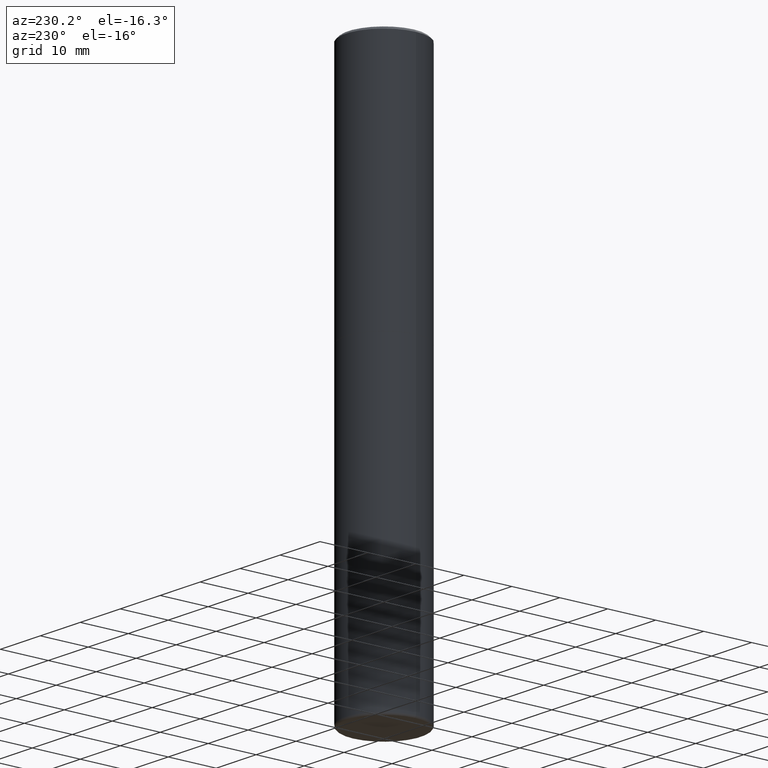
[diagram: clean part render]
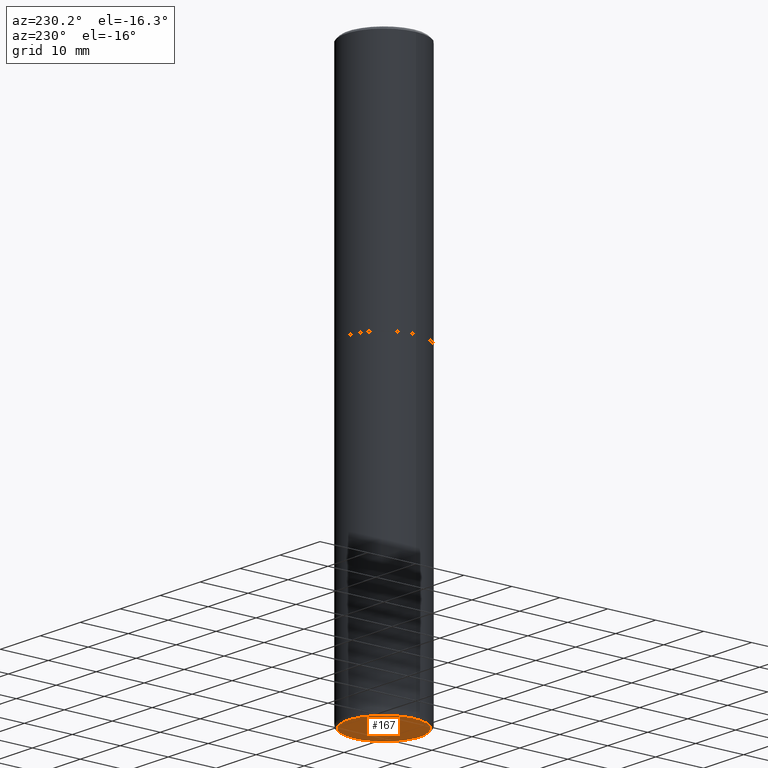
[diagram: same view with one face highlighted and labeled with its STEP entity id]
A machine part, auxiliary view. The second image highlights one B-rep face of the part: STEP entity #167.
In plain terms, the highlighted planar face has unit normal (0, -0, -1).
Its self-contained STEP definition (entity closure, byte-faithful):
#10 = CARTESIAN_POINT ( 'NONE',  ( 1.107210456688382074E-28, -1.580803090974622074E-14, -4.527599999999998737 ) ) ;
#14 = EDGE_CURVE ( 'NONE', #262, #311, #381, .T. ) ;
#34 = CARTESIAN_POINT ( 'NONE',  ( -0.2952500000000000124, -1.360577393175455947E-14, -4.527599999999998737 ) ) ;
#43 = EDGE_CURVE ( 'NONE', #311, #262, #332, .T. ) ;
#72 = DIRECTION ( 'NONE',  ( -1.000000000000000000, 6.982962677686265922E-15, -4.876176775795935793E-29 ) ) ;
#107 = AXIS2_PLACEMENT_3D ( 'NONE', #414, #115, #72 ) ;
#115 = DIRECTION ( 'NONE',  ( 2.438088387897960049E-29, -3.491481338843145188E-15, -1.000000000000000000 ) ) ;
#123 = AXIS2_PLACEMENT_3D ( 'NONE', #10, #131, #330 ) ;
#131 = DIRECTION ( 'NONE',  ( -2.445468806185136597E-29, 3.491481338843145583E-15, 1.000000000000000000 ) ) ;
#135 = CARTESIAN_POINT ( 'NONE',  ( 1.107210456688382074E-28, -1.580803090974622074E-14, -4.527599999999998737 ) ) ;
#167 = ADVANCED_FACE ( 'NONE', ( #178 ), #281, .T. ) ;
#175 = AXIS2_PLACEMENT_3D ( 'NONE', #135, #264, #335 ) ;
#178 = FACE_OUTER_BOUND ( 'NONE', #283, .T. ) ;
#180 = CARTESIAN_POINT ( 'NONE',  ( 0.2952500000000000124, -1.786975064033309297E-14, -4.527599999999998737 ) ) ;
#220 = ORIENTED_EDGE ( 'NONE', *, *, #43, .F. ) ;
#262 = VERTEX_POINT ( 'NONE', #180 ) ;
#264 = DIRECTION ( 'NONE',  ( -2.445468806185136597E-29, 3.491481338843145583E-15, 1.000000000000000000 ) ) ;
#281 = PLANE ( 'NONE',  #107 ) ;
#283 = EDGE_LOOP ( 'NONE', ( #403, #220 ) ) ;
#311 = VERTEX_POINT ( 'NONE', #34 ) ;
#330 = DIRECTION ( 'NONE',  ( 1.000000000000000000, -6.982962677686273021E-15, 0.000000000000000000 ) ) ;
#332 = CIRCLE ( 'NONE', #175, 0.2952500000000000124 ) ;
#335 = DIRECTION ( 'NONE',  ( 1.000000000000000000, -6.982962677686273021E-15, 0.000000000000000000 ) ) ;
#381 = CIRCLE ( 'NONE', #123, 0.2952500000000000124 ) ;
#403 = ORIENTED_EDGE ( 'NONE', *, *, #14, .F. ) ;
#414 = CARTESIAN_POINT ( 'NONE',  ( 1.692275825353211781E-28, -7.429561831938046296E-15, -4.527599999999998737 ) ) ;